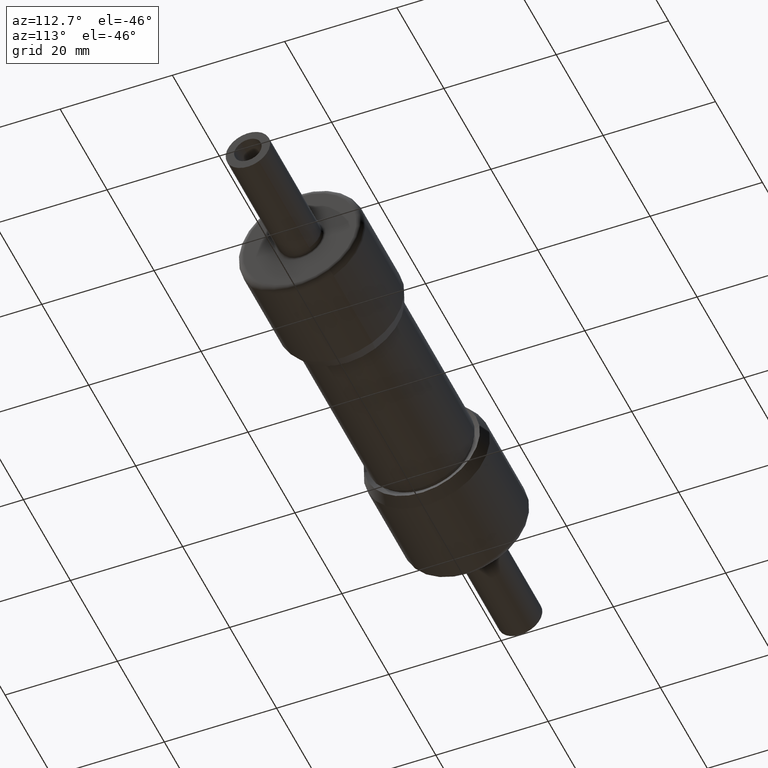
[diagram: clean part render]
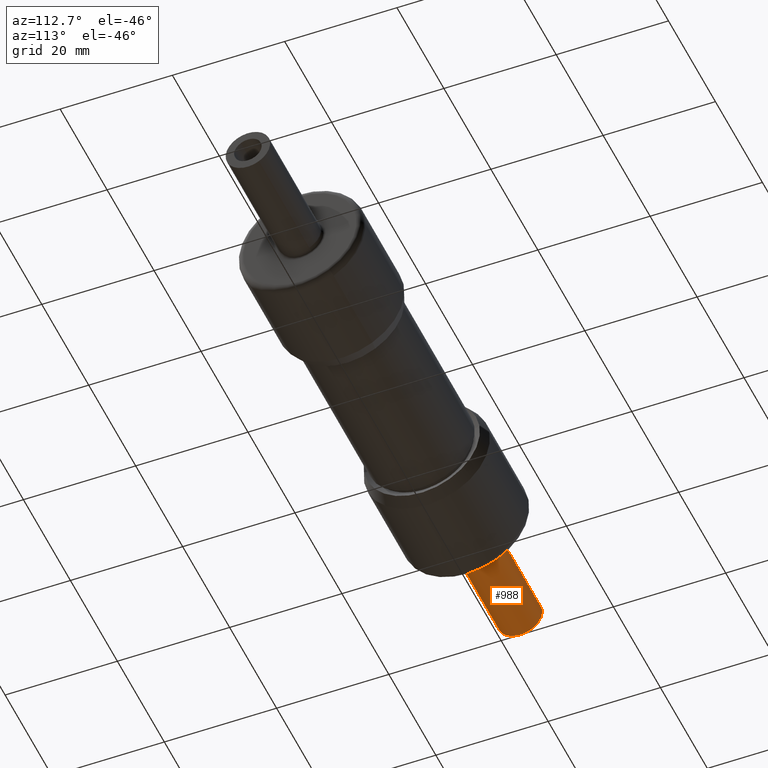
[diagram: same view with one face highlighted and labeled with its STEP entity id]
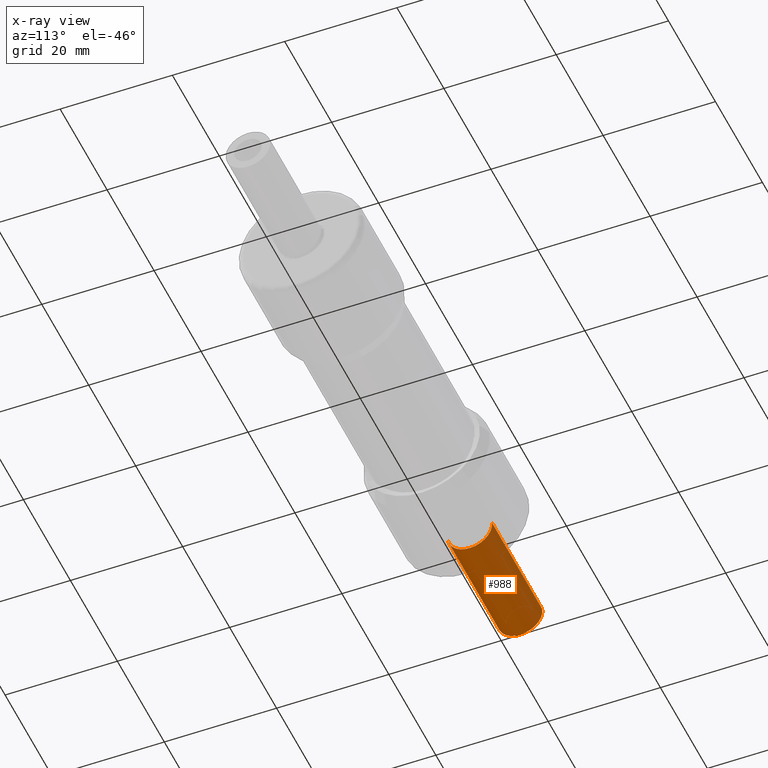
[diagram: x-ray of the same camera — body ghosted, the highlighted face saturated]
A machine part, auxiliary view. The second image highlights one B-rep face of the part: STEP entity #988.
The next image is the same camera in x-ray: the body ghosted, the highlighted face saturated — about 2% of this face is hidden behind the body in this view.
In plain terms, the highlighted cylindrical surface (edge-blend (fillet) strip) has radius 3.9624 mm, axis along (1, -0, 0).
Its self-contained STEP definition (entity closure, byte-faithful):
#359 = CARTESIAN_POINT ( 'NONE',  ( -1.105499999999999927, -0.1544550317894789193, -0.02190075694836092490 ) ) ;
#548 = CARTESIAN_POINT ( 'NONE',  ( -1.105499999999999927, 0.1544550317894787528, 0.02190075694836048428 ) ) ;
#749 = FACE_OUTER_BOUND ( 'NONE', #1882, .T. ) ;
#984 = VECTOR ( 'NONE', #4822, 39.37007874015748143 ) ;
#988 = ADVANCED_FACE ( 'NONE', ( #749 ), #5184, .T. ) ;
#1009 = LINE ( 'NONE', #4896, #6524 ) ;
#1077 = EDGE_CURVE ( 'NONE', #5583, #3232, #1009, .T. ) ;
#1339 = DIRECTION ( 'NONE',  ( 1.000000000000000000, -8.586881206085282632E-17, 8.326672684688819499E-17 ) ) ;
#1410 = DIRECTION ( 'NONE',  ( 0.000000000000000000, 0.9900963576248625886, 0.1403894676176965228 ) ) ;
#1470 = CARTESIAN_POINT ( 'NONE',  ( -0.2354999999999999871, 0.1544550317894792524, 0.02190075694836059531 ) ) ;
#1882 = EDGE_LOOP ( 'NONE', ( #7032, #2329, #4542, #5648 ) ) ;
#1895 = CARTESIAN_POINT ( 'NONE',  ( -0.2605000000000000093, 0.1544550317894786695, 0.02190075694836047734 ) ) ;
#1927 = AXIS2_PLACEMENT_3D ( 'NONE', #4018, #1339, #6203 ) ;
#2150 = DIRECTION ( 'NONE',  ( 1.000000000000000000, -8.586881206085282632E-17, 8.326672684688819499E-17 ) ) ;
#2329 = ORIENTED_EDGE ( 'NONE', *, *, #7001, .T. ) ;
#2722 = DIRECTION ( 'NONE',  ( 0.000000000000000000, -0.9900963576248625886, -0.1403894676176965228 ) ) ;
#2771 = EDGE_CURVE ( 'NONE', #5583, #7062, #2865, .T. ) ;
#2865 = CIRCLE ( 'NONE', #3787, 0.1560000000000005549 ) ;
#3037 = EDGE_CURVE ( 'NONE', #5795, #3232, #3204, .T. ) ;
#3204 = CIRCLE ( 'NONE', #4925, 0.1560000000000005549 ) ;
#3232 = VERTEX_POINT ( 'NONE', #5084 ) ;
#3787 = AXIS2_PLACEMENT_3D ( 'NONE', #6571, #5980, #2722 ) ;
#4018 = CARTESIAN_POINT ( 'NONE',  ( -0.2354999999999999871, 1.212467626299230878E-16, -1.175726183078043669E-16 ) ) ;
#4542 = ORIENTED_EDGE ( 'NONE', *, *, #3037, .T. ) ;
#4822 = DIRECTION ( 'NONE',  ( 1.000000000000000000, -8.586881206085282632E-17, 8.326672684688819499E-17 ) ) ;
#4896 = CARTESIAN_POINT ( 'NONE',  ( -0.2354999999999999871, -0.1544550317894789748, -0.02190075694836085204 ) ) ;
#4925 = AXIS2_PLACEMENT_3D ( 'NONE', #5733, #6899, #1410 ) ;
#5084 = CARTESIAN_POINT ( 'NONE',  ( -0.2605000000000000093, -0.1544550317894783920, -0.02190075694836081041 ) ) ;
#5184 = CYLINDRICAL_SURFACE ( 'NONE', #1927, 0.1560000000000005549 ) ;
#5583 = VERTEX_POINT ( 'NONE', #359 ) ;
#5648 = ORIENTED_EDGE ( 'NONE', *, *, #1077, .F. ) ;
#5733 = CARTESIAN_POINT ( 'NONE',  ( -0.2605000000000000093, 1.233934829314442830E-16, -1.196542864789766636E-16 ) ) ;
#5795 = VERTEX_POINT ( 'NONE', #1895 ) ;
#5980 = DIRECTION ( 'NONE',  ( 1.000000000000000000, -8.586881206085282632E-17, 8.326672684688819499E-17 ) ) ;
#6203 = DIRECTION ( 'NONE',  ( 0.000000000000000000, -0.9900963576248625886, -0.1403894676176965228 ) ) ;
#6406 = LINE ( 'NONE', #1470, #984 ) ;
#6524 = VECTOR ( 'NONE', #2150, 39.37007874015748143 ) ;
#6571 = CARTESIAN_POINT ( 'NONE',  ( -1.105499999999999927, 1.959526291228653907E-16, -1.900146706645974918E-16 ) ) ;
#6899 = DIRECTION ( 'NONE',  ( -1.000000000000000000, 8.586881206085282632E-17, -8.326672684688819499E-17 ) ) ;
#7001 = EDGE_CURVE ( 'NONE', #7062, #5795, #6406, .T. ) ;
#7032 = ORIENTED_EDGE ( 'NONE', *, *, #2771, .T. ) ;
#7062 = VERTEX_POINT ( 'NONE', #548 ) ;